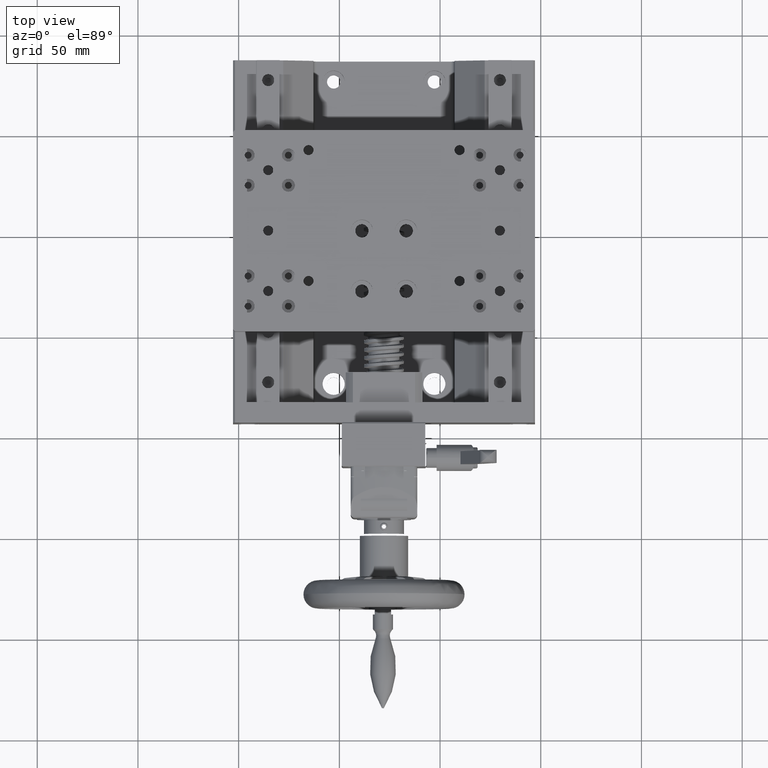
[diagram: clean part render]
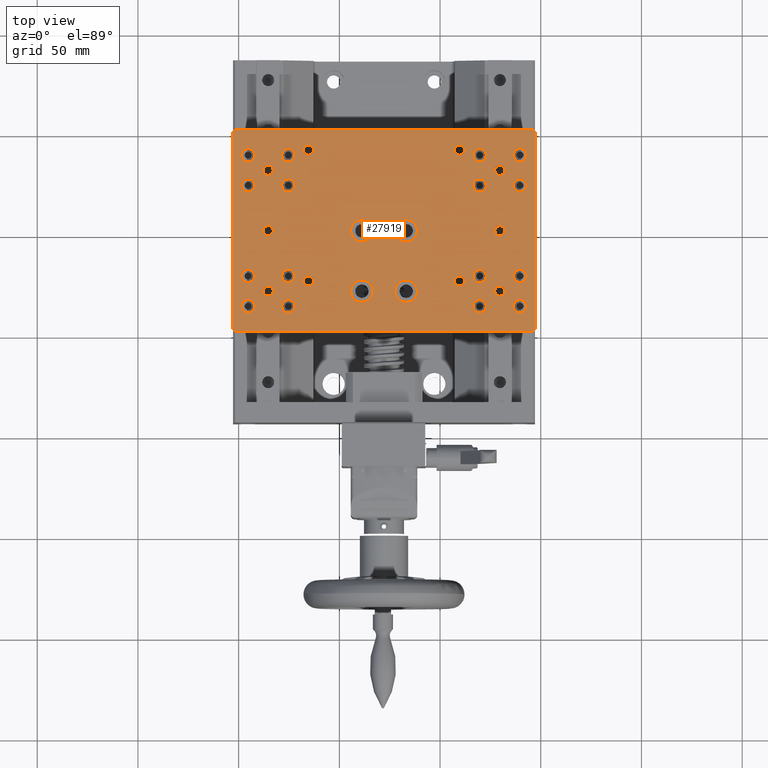
[diagram: same view with one face highlighted and labeled with its STEP entity id]
A machine part, top view. The second image highlights one B-rep face of the part: STEP entity #27919.
In plain terms, the highlighted planar face has unit normal (0, 0, 1).
Its self-contained STEP definition (entity closure, byte-faithful):
#31 = CARTESIAN_POINT ( 'NONE',  ( 19.67352052020018149, 42.70273540209104368, 44.50000000000030553 ) ) ;
#176 = EDGE_CURVE ( 'NONE', #2438, #26626, #18622, .T. ) ;
#212 = ORIENTED_EDGE ( 'NONE', *, *, #29488, .T. ) ;
#237 = EDGE_CURVE ( 'NONE', #23009, #458, #239, .T. ) ;
#239 = CIRCLE ( 'NONE', #1800, 3.250000000000002665 ) ;
#394 = CARTESIAN_POINT ( 'NONE',  ( 47.17352052019985109, -48.04726459790904869, 44.50000000000022737 ) ) ;
#458 = VERTEX_POINT ( 'NONE', #20490 ) ;
#553 = CARTESIAN_POINT ( 'NONE',  ( 9.673520520200183270, 41.95273540209107921, 44.50000000000034106 ) ) ;
#606 = DIRECTION ( 'NONE',  ( 5.551115123125838711E-15, 1.000000000000000000, 0.000000000000000000 ) ) ;
#684 = EDGE_CURVE ( 'NONE', #28300, #30101, #17594, .T. ) ;
#707 = EDGE_CURVE ( 'NONE', #8504, #20099, #12713, .T. ) ;
#801 = CIRCLE ( 'NONE', #25458, 2.499999999999974243 ) ;
#811 = EDGE_CURVE ( 'NONE', #12577, #15685, #16602, .T. ) ;
#895 = CARTESIAN_POINT ( 'NONE',  ( 19.67352052020012110, 24.45273540209104368, 44.50000000000031264 ) ) ;
#918 = CIRCLE ( 'NONE', #28790, 3.250000000000002665 ) ;
#949 = VECTOR ( 'NONE', #14901, 1000.000000000000114 ) ;
#986 = CARTESIAN_POINT ( 'NONE',  ( 29.67352052020012820, 29.45273540209103658, 44.50000000000027001 ) ) ;
#1008 = CARTESIAN_POINT ( 'NONE',  ( -27.82647947979995351, 1.952735402091210659, 44.50000000000047606 ) ) ;
#1017 = VERTEX_POINT ( 'NONE', #11542 ) ;
#1020 = CARTESIAN_POINT ( 'NONE',  ( 19.67352052019991504, -35.54726459790895632, 44.50000000000031974 ) ) ;
#1032 = CIRCLE ( 'NONE', #20483, 5.499999999999987566 ) ;
#1076 = DIRECTION ( 'NONE',  ( 4.163336342344379625E-15, 1.000000000000000000, 0.000000000000000000 ) ) ;
#1128 = CARTESIAN_POINT ( 'NONE',  ( -65.32647947979981495, 41.95273540209134211, 44.50000000000059686 ) ) ;
#1179 = ORIENTED_EDGE ( 'NONE', *, *, #30497, .F. ) ;
#1244 = ORIENTED_EDGE ( 'NONE', *, *, #29768, .F. ) ;
#1249 = VECTOR ( 'NONE', #5901, 1000.000000000000114 ) ;
#1299 = AXIS2_PLACEMENT_3D ( 'NONE', #12927, #20814, #3367 ) ;
#1350 = AXIS2_PLACEMENT_3D ( 'NONE', #29715, #27281, #2214 ) ;
#1488 = AXIS2_PLACEMENT_3D ( 'NONE', #16356, #31157, #3684 ) ;
#1489 = FACE_BOUND ( 'NONE', #16228, .T. ) ;
#1514 = DIRECTION ( 'NONE',  ( -4.270088556250598741E-15, -1.000000000000000000, 0.000000000000000000 ) ) ;
#1590 = ORIENTED_EDGE ( 'NONE', *, *, #24673, .F. ) ;
#1626 = VERTEX_POINT ( 'NONE', #20523 ) ;
#1642 = FACE_BOUND ( 'NONE', #17357, .T. ) ;
#1658 = CARTESIAN_POINT ( 'NONE',  ( -102.8264794797998007, 50.95273539737952717, 44.50000000000072475 ) ) ;
#1786 = AXIS2_PLACEMENT_3D ( 'NONE', #17749, #7399, #2762 ) ;
#1794 = CARTESIAN_POINT ( 'NONE',  ( -95.32647947980007075, -23.79726459790855841, 44.50000000000071054 ) ) ;
#1800 = AXIS2_PLACEMENT_3D ( 'NONE', #9304, #29569, #16909 ) ;
#1833 = AXIS2_PLACEMENT_3D ( 'NONE', #1128, #6082, #13636 ) ;
#1921 = EDGE_LOOP ( 'NONE', ( #27585, #10217 ) ) ;
#1922 = DIRECTION ( 'NONE',  ( -3.452590796308460919E-15, -1.665334536937734318E-16, -1.000000000000000000 ) ) ;
#2002 = CARTESIAN_POINT ( 'NONE',  ( 19.67352052020012465, 27.70273540209104723, 44.50000000000031264 ) ) ;
#2121 = VERTEX_POINT ( 'NONE', #26660 ) ;
#2214 = DIRECTION ( 'NONE',  ( -4.270088556250598741E-15, -1.000000000000000000, 0.000000000000000000 ) ) ;
#2244 = CARTESIAN_POINT ( 'NONE',  ( -85.32647947980005654, -28.04726459790859039, 44.50000000000066791 ) ) ;
#2252 = AXIS2_PLACEMENT_3D ( 'NONE', #6932, #18945, #6625 ) ;
#2303 = CIRCLE ( 'NONE', #20698, 3.250000000000002665 ) ;
#2324 = VERTEX_POINT ( 'NONE', #9498 ) ;
#2329 = CARTESIAN_POINT ( 'NONE',  ( 19.67352052020017794, 39.45273540209104368, 44.50000000000030553 ) ) ;
#2358 = ORIENTED_EDGE ( 'NONE', *, *, #3321, .T. ) ;
#2438 = VERTEX_POINT ( 'NONE', #13113 ) ;
#2513 = DIRECTION ( 'NONE',  ( -3.202566417187948859E-15, -1.000000000000000000, 0.000000000000000000 ) ) ;
#2569 = AXIS2_PLACEMENT_3D ( 'NONE', #1020, #21260, #5973 ) ;
#2762 = DIRECTION ( 'NONE',  ( 5.551115123125840289E-15, 1.000000000000000000, 0.000000000000000000 ) ) ;
#2878 = DIRECTION ( 'NONE',  ( -4.270088556250598741E-15, -1.000000000000000000, 0.000000000000000000 ) ) ;
#2970 = DIRECTION ( 'NONE',  ( -3.452590796308460919E-15, -1.665334536937734318E-16, -1.000000000000000000 ) ) ;
#3001 = DIRECTION ( 'NONE',  ( -3.452590796308460919E-15, -1.665334536937734318E-16, -1.000000000000000000 ) ) ;
#3145 = EDGE_CURVE ( 'NONE', #18561, #13395, #29830, .T. ) ;
#3190 = VERTEX_POINT ( 'NONE', #12704 ) ;
#3275 = CIRCLE ( 'NONE', #29032, 3.250000000000002665 ) ;
#3298 = EDGE_LOOP ( 'NONE', ( #29283, #31075 ) ) ;
#3321 = EDGE_CURVE ( 'NONE', #28840, #8112, #16313, .T. ) ;
#3327 = DIRECTION ( 'NONE',  ( 4.163336342344379625E-15, 1.000000000000000000, 0.000000000000000000 ) ) ;
#3367 = DIRECTION ( 'NONE',  ( -4.270088556250598741E-15, -1.000000000000000000, 0.000000000000000000 ) ) ;
#3403 = AXIS2_PLACEMENT_3D ( 'NONE', #5800, #5641, #10540 ) ;
#3473 = FACE_BOUND ( 'NONE', #3298, .T. ) ;
#3503 = ORIENTED_EDGE ( 'NONE', *, *, #17950, .T. ) ;
#3600 = CIRCLE ( 'NONE', #1488, 5.499999999999987566 ) ;
#3633 = FACE_BOUND ( 'NONE', #22484, .T. ) ;
#3681 = EDGE_CURVE ( 'NONE', #5665, #24808, #14085, .T. ) ;
#3684 = DIRECTION ( 'NONE',  ( -3.784851220313041836E-15, -1.000000000000000000, 0.000000000000000000 ) ) ;
#3685 = CIRCLE ( 'NONE', #19981, 3.250000000000002665 ) ;
#3723 = CARTESIAN_POINT ( 'NONE',  ( 19.67352052019996833, -20.54726459790895277, 44.50000000000031974 ) ) ;
#3785 = EDGE_CURVE ( 'NONE', #24439, #12347, #14247, .T. ) ;
#3796 = DIRECTION ( 'NONE',  ( -4.270088556250598741E-15, -1.000000000000000000, 0.000000000000000000 ) ) ;
#3801 = DIRECTION ( 'NONE',  ( -3.452590796308460919E-15, -1.665334536937734318E-16, -1.000000000000000000 ) ) ;
#3887 = DIRECTION ( 'NONE',  ( 3.452590796308460919E-15, 1.665334536937734318E-16, 1.000000000000000000 ) ) ;
#3894 = ORIENTED_EDGE ( 'NONE', *, *, #19004, .T. ) ;
#3926 = CARTESIAN_POINT ( 'NONE',  ( -65.32647947979980074, 44.45273540209132079, 44.50000000000059686 ) ) ;
#3938 = AXIS2_PLACEMENT_3D ( 'NONE', #2329, #19793, #14851 ) ;
#3957 = EDGE_CURVE ( 'NONE', #28511, #31693, #3600, .T. ) ;
#3975 = FACE_BOUND ( 'NONE', #8365, .T. ) ;
#4000 = ORIENTED_EDGE ( 'NONE', *, *, #12335, .T. ) ;
#4078 = ORIENTED_EDGE ( 'NONE', *, *, #26300, .F. ) ;
#4168 = CARTESIAN_POINT ( 'NONE',  ( -75.32647947980008496, -35.54726459790862236, 44.50000000000065370 ) ) ;
#4170 = ORIENTED_EDGE ( 'NONE', *, *, #30634, .T. ) ;
#4196 = CIRCLE ( 'NONE', #4218, 2.499999999999974687 ) ;
#4218 = AXIS2_PLACEMENT_3D ( 'NONE', #10625, #32542, #25621 ) ;
#4227 = CIRCLE ( 'NONE', #23140, 3.250000000000002665 ) ;
#4270 = EDGE_CURVE ( 'NONE', #14915, #6494, #22547, .T. ) ;
#4299 = DIRECTION ( 'NONE',  ( -3.452590796308460919E-15, -1.665334536937734318E-16, -1.000000000000000000 ) ) ;
#4343 = EDGE_CURVE ( 'NONE', #13612, #11249, #25710, .T. ) ;
#4349 = EDGE_CURVE ( 'NONE', #14831, #26447, #7311, .T. ) ;
#4375 = CARTESIAN_POINT ( 'NONE',  ( -16.82647947980006009, -28.04726459790882842, 44.50000000000044054 ) ) ;
#4396 = CIRCLE ( 'NONE', #26448, 3.250000000000002665 ) ;
#4411 = EDGE_CURVE ( 'NONE', #10368, #6114, #25200, .T. ) ;
#4488 = VERTEX_POINT ( 'NONE', #21918 ) ;
#4493 = DIRECTION ( 'NONE',  ( 5.551115123125840289E-15, 1.000000000000000000, 0.000000000000000000 ) ) ;
#4533 = AXIS2_PLACEMENT_3D ( 'NONE', #29909, #12453, #30219 ) ;
#4550 = VECTOR ( 'NONE', #10434, 1000.000000000000000 ) ;
#4589 = ORIENTED_EDGE ( 'NONE', *, *, #13256, .T. ) ;
#4740 = AXIS2_PLACEMENT_3D ( 'NONE', #4168, #24238, #24394 ) ;
#4760 = DIRECTION ( 'NONE',  ( -4.270088556250598741E-15, -1.000000000000000000, 0.000000000000000000 ) ) ;
#4761 = AXIS2_PLACEMENT_3D ( 'NONE', #18958, #10891, #1514 ) ;
#4763 = DIRECTION ( 'NONE',  ( 4.163336342344379625E-15, 1.000000000000000000, 0.000000000000000000 ) ) ;
#4785 = DIRECTION ( 'NONE',  ( -4.270088556250598741E-15, -1.000000000000000000, 0.000000000000000000 ) ) ;
#4843 = DIRECTION ( 'NONE',  ( -4.270088556250598741E-15, -1.000000000000000000, 0.000000000000000000 ) ) ;
#4969 = DIRECTION ( 'NONE',  ( 3.452590796308460919E-15, 1.665334536937734318E-16, 1.000000000000000000 ) ) ;
#5028 = CIRCLE ( 'NONE', #1833, 2.499999999999974243 ) ;
#5059 = DIRECTION ( 'NONE',  ( -4.270088556250598741E-15, -1.000000000000000000, 0.000000000000000000 ) ) ;
#5157 = AXIS2_PLACEMENT_3D ( 'NONE', #18649, #6503, #28728 ) ;
#5244 = ORIENTED_EDGE ( 'NONE', *, *, #3145, .T. ) ;
#5250 = CARTESIAN_POINT ( 'NONE',  ( -16.82647947980005299, -22.54726459790884263, 44.50000000000044054 ) ) ;
#5251 = AXIS2_PLACEMENT_3D ( 'NONE', #21424, #23902, #8747 ) ;
#5386 = CARTESIAN_POINT ( 'NONE',  ( 19.67352052019991859, -32.29726459790894921, 44.50000000000031974 ) ) ;
#5466 = ORIENTED_EDGE ( 'NONE', *, *, #11305, .F. ) ;
#5480 = ORIENTED_EDGE ( 'NONE', *, *, #21423, .F. ) ;
#5641 = DIRECTION ( 'NONE',  ( -3.452590796308460919E-15, -1.665334536937734318E-16, -1.000000000000000000 ) ) ;
#5665 = VERTEX_POINT ( 'NONE', #24456 ) ;
#5800 = CARTESIAN_POINT ( 'NONE',  ( 9.673520520199954120, -23.04726459790892079, 44.50000000000034817 ) ) ;
#5901 = DIRECTION ( 'NONE',  ( -0.7071067811865451302, 0.7071067811865500152, 2.301000202913787996E-15 ) ) ;
#5973 = DIRECTION ( 'NONE',  ( -3.202566417187948859E-15, -1.000000000000000000, 0.000000000000000000 ) ) ;
#5987 = DIRECTION ( 'NONE',  ( 3.452590796308460919E-15, 1.665334536937734318E-16, 1.000000000000000000 ) ) ;
#6032 = EDGE_CURVE ( 'NONE', #24552, #9585, #14564, .T. ) ;
#6082 = DIRECTION ( 'NONE',  ( -3.452590796308460919E-15, -1.665334536937734318E-16, -1.000000000000000000 ) ) ;
#6114 = VERTEX_POINT ( 'NONE', #13655 ) ;
#6123 = FACE_BOUND ( 'NONE', #20477, .T. ) ;
#6188 = EDGE_LOOP ( 'NONE', ( #24569, #26665 ) ) ;
#6276 = ORIENTED_EDGE ( 'NONE', *, *, #26217, .F. ) ;
#6295 = FACE_BOUND ( 'NONE', #18134, .T. ) ;
#6322 = AXIS2_PLACEMENT_3D ( 'NONE', #25477, #12963, #30400 ) ;
#6355 = EDGE_LOOP ( 'NONE', ( #6411, #6276 ) ) ;
#6411 = ORIENTED_EDGE ( 'NONE', *, *, #23279, .F. ) ;
#6453 = CARTESIAN_POINT ( 'NONE',  ( -65.32647947980004233, -23.04726459790866144, 44.50000000000060396 ) ) ;
#6457 = FACE_BOUND ( 'NONE', #28649, .T. ) ;
#6494 = VERTEX_POINT ( 'NONE', #26932 ) ;
#6503 = DIRECTION ( 'NONE',  ( 3.452590796308460919E-15, 1.665334536937734318E-16, 1.000000000000000000 ) ) ;
#6521 = CARTESIAN_POINT ( 'NONE',  ( -95.32647947979985759, 36.20273540209144159, 44.50000000000069633 ) ) ;
#6538 = DIRECTION ( 'NONE',  ( -3.202566417187948859E-15, -1.000000000000000000, 0.000000000000000000 ) ) ;
#6620 = FACE_BOUND ( 'NONE', #6188, .T. ) ;
#6625 = DIRECTION ( 'NONE',  ( -4.270088556250598741E-15, -1.000000000000000000, 0.000000000000000000 ) ) ;
#6743 = ORIENTED_EDGE ( 'NONE', *, *, #11839, .F. ) ;
#6749 = ORIENTED_EDGE ( 'NONE', *, *, #20824, .F. ) ;
#6773 = DIRECTION ( 'NONE',  ( 5.551115123125840289E-15, 1.000000000000000000, 0.000000000000000000 ) ) ;
#6841 = DIRECTION ( 'NONE',  ( -4.270088556250598741E-15, -1.000000000000000000, 0.000000000000000000 ) ) ;
#6932 = CARTESIAN_POINT ( 'NONE',  ( 39.67352052020016373, 39.45273540209097263, 44.50000000000024158 ) ) ;
#7034 = EDGE_CURVE ( 'NONE', #24808, #5665, #10295, .T. ) ;
#7051 = CIRCLE ( 'NONE', #1786, 2.499999999999974243 ) ;
#7092 = CIRCLE ( 'NONE', #3938, 3.250000000000002665 ) ;
#7127 = CARTESIAN_POINT ( 'NONE',  ( 19.67352052019991504, -35.54726459790895632, 44.50000000000031974 ) ) ;
#7178 = AXIS2_PLACEMENT_3D ( 'NONE', #18679, #23641, #1076 ) ;
#7186 = CARTESIAN_POINT ( 'NONE',  ( -89.82647947744376893, 63.95273539973545240, 44.50000000000067502 ) ) ;
#7230 = CARTESIAN_POINT ( 'NONE',  ( -75.32647947979988601, 24.45273540209137408, 44.50000000000063949 ) ) ;
#7278 = DIRECTION ( 'NONE',  ( -3.452590796308460919E-15, -1.665334536937734318E-16, -1.000000000000000000 ) ) ;
#7311 = CIRCLE ( 'NONE', #5251, 5.499999999999987566 ) ;
#7329 = DIRECTION ( 'NONE',  ( 3.452590796308460919E-15, 1.665334536937734318E-16, 1.000000000000000000 ) ) ;
#7373 = DIRECTION ( 'NONE',  ( 4.163336342344379625E-15, 1.000000000000000000, 0.000000000000000000 ) ) ;
#7394 = VERTEX_POINT ( 'NONE', #24010 ) ;
#7399 = DIRECTION ( 'NONE',  ( -3.452590796308460919E-15, -1.665334536937734318E-16, -1.000000000000000000 ) ) ;
#7411 = ORIENTED_EDGE ( 'NONE', *, *, #21082, .T. ) ;
#7458 = DIRECTION ( 'NONE',  ( 1.000000000000000000, -3.478907848654647380E-15, -3.420639147677696500E-15 ) ) ;
#7499 = EDGE_CURVE ( 'NONE', #15685, #12577, #31194, .T. ) ;
#7533 = EDGE_CURVE ( 'NONE', #13395, #18561, #11736, .T. ) ;
#7594 = VECTOR ( 'NONE', #27013, 1000.000000000000000 ) ;
#7636 = VECTOR ( 'NONE', #32307, 1000.000000000000114 ) ;
#7723 = CARTESIAN_POINT ( 'NONE',  ( 47.17352052019986530, -47.04726459319709164, 44.50000000000022737 ) ) ;
#7769 = CIRCLE ( 'NONE', #24583, 3.250000000000002665 ) ;
#7859 = AXIS2_PLACEMENT_3D ( 'NONE', #20761, #8263, #18293 ) ;
#7952 = CARTESIAN_POINT ( 'NONE',  ( -101.8264794750881919, -48.04726459790853710, 44.50000000000073896 ) ) ;
#7954 = DIRECTION ( 'NONE',  ( 4.163336342344379625E-15, 1.000000000000000000, 0.000000000000000000 ) ) ;
#7966 = CARTESIAN_POINT ( 'NONE',  ( 29.67352052020015307, 31.95273540209100815, 44.50000000000027001 ) ) ;
#8085 = CARTESIAN_POINT ( 'NONE',  ( 19.67352052019996833, -20.54726459790895277, 44.50000000000031974 ) ) ;
#8098 = LINE ( 'NONE', #17475, #9724 ) ;
#8112 = VERTEX_POINT ( 'NONE', #7723 ) ;
#8138 = CARTESIAN_POINT ( 'NONE',  ( 19.67352052019995767, -23.79726459790895632, 44.50000000000031974 ) ) ;
#8194 = ORIENTED_EDGE ( 'NONE', *, *, #10438, .F. ) ;
#8263 = DIRECTION ( 'NONE',  ( -3.452590796308460919E-15, -1.665334536937734318E-16, -1.000000000000000000 ) ) ;
#8343 = ORIENTED_EDGE ( 'NONE', *, *, #16291, .F. ) ;
#8355 = LINE ( 'NONE', #23331, #1249 ) ;
#8365 = EDGE_LOOP ( 'NONE', ( #22284, #25078 ) ) ;
#8376 = DIRECTION ( 'NONE',  ( -4.270088556250598741E-15, -1.000000000000000000, 0.000000000000000000 ) ) ;
#8486 = ORIENTED_EDGE ( 'NONE', *, *, #4343, .F. ) ;
#8504 = VERTEX_POINT ( 'NONE', #13158 ) ;
#8628 = EDGE_LOOP ( 'NONE', ( #6743, #10453 ) ) ;
#8747 = DIRECTION ( 'NONE',  ( -3.784851220313041836E-15, -1.000000000000000000, 0.000000000000000000 ) ) ;
#8799 = CIRCLE ( 'NONE', #5157, 3.250000000000002665 ) ;
#8889 = CARTESIAN_POINT ( 'NONE',  ( -75.32647947980008496, -32.29726459790861526, 44.50000000000065370 ) ) ;
#8925 = ORIENTED_EDGE ( 'NONE', *, *, #18683, .F. ) ;
#8956 = CARTESIAN_POINT ( 'NONE',  ( -85.32647947979982916, 34.45273540209138474, 44.50000000000066080 ) ) ;
#8966 = EDGE_LOOP ( 'NONE', ( #10803, #3503 ) ) ;
#9004 = DIRECTION ( 'NONE',  ( 5.551115123125840289E-15, 1.000000000000000000, 0.000000000000000000 ) ) ;
#9048 = FACE_BOUND ( 'NONE', #13603, .T. ) ;
#9103 = VERTEX_POINT ( 'NONE', #12110 ) ;
#9147 = CARTESIAN_POINT ( 'NONE',  ( -75.32647947980002812, -20.54726459790862592, 44.50000000000064659 ) ) ;
#9178 = AXIS2_PLACEMENT_3D ( 'NONE', #7127, #19621, #29658 ) ;
#9210 = FACE_BOUND ( 'NONE', #16154, .T. ) ;
#9227 = CIRCLE ( 'NONE', #26102, 2.499999999999974243 ) ;
#9304 = CARTESIAN_POINT ( 'NONE',  ( -75.32647947979982916, 39.45273540209137764, 44.50000000000063949 ) ) ;
#9480 = CARTESIAN_POINT ( 'NONE',  ( 39.67352052019992215, -32.29726459790902027, 44.50000000000025580 ) ) ;
#9498 = CARTESIAN_POINT ( 'NONE',  ( -95.32647947980008496, -32.29726459790855131, 44.50000000000071054 ) ) ;
#9585 = VERTEX_POINT ( 'NONE', #18418 ) ;
#9700 = CIRCLE ( 'NONE', #1299, 3.250000000000002665 ) ;
#9724 = VECTOR ( 'NONE', #7458, 1000.000000000000000 ) ;
#9737 = AXIS2_PLACEMENT_3D ( 'NONE', #22476, #7329, #10261 ) ;
#9804 = EDGE_CURVE ( 'NONE', #21197, #11679, #18899, .T. ) ;
#9832 = ORIENTED_EDGE ( 'NONE', *, *, #28963, .T. ) ;
#9851 = CARTESIAN_POINT ( 'NONE',  ( -102.8264794797997865, 51.95273540209147711, 44.50000000000072475 ) ) ;
#9914 = DIRECTION ( 'NONE',  ( -3.452590796308460919E-15, -1.665334536937734318E-16, -1.000000000000000000 ) ) ;
#9920 = EDGE_CURVE ( 'NONE', #28590, #26614, #9963, .T. ) ;
#9963 = CIRCLE ( 'NONE', #4740, 3.250000000000002665 ) ;
#9974 = ORIENTED_EDGE ( 'NONE', *, *, #4270, .T. ) ;
#10012 = CARTESIAN_POINT ( 'NONE',  ( -38.82647947979995706, 1.952735402091241967, 44.50000000000051159 ) ) ;
#10020 = CIRCLE ( 'NONE', #14221, 3.250000000000002665 ) ;
#10083 = CARTESIAN_POINT ( 'NONE',  ( 39.67352052020012820, 27.70273540209097618, 44.50000000000024158 ) ) ;
#10217 = ORIENTED_EDGE ( 'NONE', *, *, #23029, .F. ) ;
#10261 = DIRECTION ( 'NONE',  ( -4.270088556250598741E-15, -1.000000000000000000, 0.000000000000000000 ) ) ;
#10295 = CIRCLE ( 'NONE', #23449, 3.250000000000002665 ) ;
#10368 = VERTEX_POINT ( 'NONE', #8956 ) ;
#10423 = CARTESIAN_POINT ( 'NONE',  ( 39.67352052020017084, 42.70273540209097973, 44.50000000000024158 ) ) ;
#10434 = DIRECTION ( 'NONE',  ( 3.486929317224867175E-15, 1.000000000000000000, -1.665334536937734811E-16 ) ) ;
#10438 = EDGE_CURVE ( 'NONE', #7394, #9103, #3685, .T. ) ;
#10453 = ORIENTED_EDGE ( 'NONE', *, *, #12641, .F. ) ;
#10473 = EDGE_CURVE ( 'NONE', #2324, #17786, #4227, .T. ) ;
#10512 = CARTESIAN_POINT ( 'NONE',  ( -95.32647947979984338, 39.45273540209144869, 44.50000000000069633 ) ) ;
#10540 = DIRECTION ( 'NONE',  ( 3.469446951953650082E-15, 1.000000000000000000, 0.000000000000000000 ) ) ;
#10590 = DIRECTION ( 'NONE',  ( 3.469446951953650082E-15, 1.000000000000000000, 0.000000000000000000 ) ) ;
#10625 = CARTESIAN_POINT ( 'NONE',  ( -85.32647947979995706, 1.952735402091410721, 44.50000000000066080 ) ) ;
#10796 = AXIS2_PLACEMENT_3D ( 'NONE', #11631, #26649, #4760 ) ;
#10803 = ORIENTED_EDGE ( 'NONE', *, *, #15529, .T. ) ;
#10891 = DIRECTION ( 'NONE',  ( 3.452590796308460919E-15, 1.665334536937734318E-16, 1.000000000000000000 ) ) ;
#10969 = DIRECTION ( 'NONE',  ( -3.452590796308460919E-15, -1.665334536937734318E-16, -1.000000000000000000 ) ) ;
#10978 = CARTESIAN_POINT ( 'NONE',  ( -38.82647947979994996, 7.452735402091229311, 44.50000000000051159 ) ) ;
#11041 = FACE_BOUND ( 'NONE', #14762, .T. ) ;
#11116 = ORIENTED_EDGE ( 'NONE', *, *, #32556, .F. ) ;
#11194 = FACE_BOUND ( 'NONE', #23861, .T. ) ;
#11249 = VERTEX_POINT ( 'NONE', #5386 ) ;
#11275 = AXIS2_PLACEMENT_3D ( 'NONE', #27722, #12698, #4843 ) ;
#11305 = EDGE_CURVE ( 'NONE', #30101, #28300, #14159, .T. ) ;
#11386 = VERTEX_POINT ( 'NONE', #26422 ) ;
#11438 = AXIS2_PLACEMENT_3D ( 'NONE', #21928, #7278, #4493 ) ;
#11469 = DIRECTION ( 'NONE',  ( 3.452590796308460919E-15, 1.665334536937734318E-16, 1.000000000000000000 ) ) ;
#11542 = CARTESIAN_POINT ( 'NONE',  ( 9.673520520199927475, -25.54726459790889592, 44.50000000000034817 ) ) ;
#11631 = CARTESIAN_POINT ( 'NONE',  ( 39.67352052019991504, -35.54726459790902027, 44.50000000000025580 ) ) ;
#11664 = CIRCLE ( 'NONE', #30070, 2.499999999999974243 ) ;
#11677 = PLANE ( 'NONE',  #32522 ) ;
#11679 = VERTEX_POINT ( 'NONE', #10083 ) ;
#11706 = AXIS2_PLACEMENT_3D ( 'NONE', #12142, #32060, #29115 ) ;
#11730 = EDGE_CURVE ( 'NONE', #27986, #23127, #14184, .T. ) ;
#11736 = CIRCLE ( 'NONE', #19183, 2.499999999999974243 ) ;
#11839 = EDGE_CURVE ( 'NONE', #2121, #21381, #1032, .T. ) ;
#11842 = EDGE_CURVE ( 'NONE', #26447, #14831, #19980, .T. ) ;
#11912 = DIRECTION ( 'NONE',  ( -4.270088556250598741E-15, -1.000000000000000000, 0.000000000000000000 ) ) ;
#11913 = DIRECTION ( 'NONE',  ( -4.270088556250598741E-15, -1.000000000000000000, 0.000000000000000000 ) ) ;
#11992 = ORIENTED_EDGE ( 'NONE', *, *, #21649, .T. ) ;
#11998 = VERTEX_POINT ( 'NONE', #21017 ) ;
#12110 = CARTESIAN_POINT ( 'NONE',  ( -75.32647947979990022, 21.20273540209137053, 44.50000000000063949 ) ) ;
#12125 = DIRECTION ( 'NONE',  ( -3.452590796308460919E-15, -1.665334536937734318E-16, -1.000000000000000000 ) ) ;
#12142 = CARTESIAN_POINT ( 'NONE',  ( -38.82647947980005654, -28.04726459790875026, 44.50000000000051870 ) ) ;
#12217 = CIRCLE ( 'NONE', #16958, 2.499999999999974243 ) ;
#12250 = VERTEX_POINT ( 'NONE', #18956 ) ;
#12335 = EDGE_CURVE ( 'NONE', #24110, #16615, #25643, .T. ) ;
#12347 = VERTEX_POINT ( 'NONE', #1658 ) ;
#12396 = CIRCLE ( 'NONE', #4533, 5.499999999999984013 ) ;
#12425 = CIRCLE ( 'NONE', #12940, 3.250000000000002665 ) ;
#12427 = DIRECTION ( 'NONE',  ( -4.270088556250598741E-15, -1.000000000000000000, 0.000000000000000000 ) ) ;
#12453 = DIRECTION ( 'NONE',  ( 3.452590796308460919E-15, 1.665334536937734318E-16, 1.000000000000000000 ) ) ;
#12488 = DIRECTION ( 'NONE',  ( -3.486929317224867175E-15, -1.000000000000000000, 1.665334536937734811E-16 ) ) ;
#12529 = AXIS2_PLACEMENT_3D ( 'NONE', #32473, #9914, #19975 ) ;
#12569 = DIRECTION ( 'NONE',  ( 3.452590796308460919E-15, 1.665334536937734318E-16, 1.000000000000000000 ) ) ;
#12577 = VERTEX_POINT ( 'NONE', #986 ) ;
#12641 = EDGE_CURVE ( 'NONE', #21381, #2121, #13551, .T. ) ;
#12650 = LINE ( 'NONE', #9851, #24931 ) ;
#12698 = DIRECTION ( 'NONE',  ( 3.452590796308460919E-15, 1.665334536937734318E-16, 1.000000000000000000 ) ) ;
#12702 = CARTESIAN_POINT ( 'NONE',  ( 9.673520520199963002, -20.54726459790894566, 44.50000000000034817 ) ) ;
#12704 = CARTESIAN_POINT ( 'NONE',  ( 29.67352052019995412, -25.54726459790901316, 44.50000000000028422 ) ) ;
#12713 = LINE ( 'NONE', #29523, #7636 ) ;
#12726 = CIRCLE ( 'NONE', #31118, 3.250000000000002665 ) ;
#12803 = VERTEX_POINT ( 'NONE', #9480 ) ;
#12927 = CARTESIAN_POINT ( 'NONE',  ( -75.32647947980002812, -20.54726459790862592, 44.50000000000064659 ) ) ;
#12940 = AXIS2_PLACEMENT_3D ( 'NONE', #26935, #27269, #11912 ) ;
#12963 = DIRECTION ( 'NONE',  ( 3.452590796308460919E-15, 1.665334536937734318E-16, 1.000000000000000000 ) ) ;
#12977 = ORIENTED_EDGE ( 'NONE', *, *, #14019, .F. ) ;
#13093 = CARTESIAN_POINT ( 'NONE',  ( 39.67352052019995767, -20.54726459790902382, 44.50000000000024869 ) ) ;
#13095 = EDGE_LOOP ( 'NONE', ( #22063, #20633 ) ) ;
#13113 = CARTESIAN_POINT ( 'NONE',  ( -85.32647947979994285, 4.452735402091385630, 44.50000000000066080 ) ) ;
#13140 = CARTESIAN_POINT ( 'NONE',  ( 29.67352052020005715, 4.452735402090985062, 44.50000000000027711 ) ) ;
#13158 = CARTESIAN_POINT ( 'NONE',  ( -102.8264794798001276, -47.04726459319657295, 44.50000000000073896 ) ) ;
#13256 = EDGE_CURVE ( 'NONE', #4488, #24439, #16951, .T. ) ;
#13283 = ORIENTED_EDGE ( 'NONE', *, *, #4411, .T. ) ;
#13395 = VERTEX_POINT ( 'NONE', #13140 ) ;
#13511 = FACE_BOUND ( 'NONE', #15908, .T. ) ;
#13517 = CARTESIAN_POINT ( 'NONE',  ( 34.17352051784386191, -60.04726459555303109, 44.50000000000027711 ) ) ;
#13551 = CIRCLE ( 'NONE', #31936, 5.499999999999987566 ) ;
#13561 = ORIENTED_EDGE ( 'NONE', *, *, #11842, .F. ) ;
#13603 = EDGE_LOOP ( 'NONE', ( #8486, #1244 ) ) ;
#13612 = VERTEX_POINT ( 'NONE', #26977 ) ;
#13636 = DIRECTION ( 'NONE',  ( 5.551115123125840289E-15, 1.000000000000000000, 0.000000000000000000 ) ) ;
#13640 = EDGE_CURVE ( 'NONE', #12803, #16938, #27661, .T. ) ;
#13655 = CARTESIAN_POINT ( 'NONE',  ( -85.32647947979988601, 29.45273540209143803, 44.50000000000066080 ) ) ;
#13670 = FACE_OUTER_BOUND ( 'NONE', #22670, .T. ) ;
#13754 = EDGE_CURVE ( 'NONE', #15993, #11998, #12396, .T. ) ;
#13808 = DIRECTION ( 'NONE',  ( -4.270088556250598741E-15, -1.000000000000000000, 0.000000000000000000 ) ) ;
#13948 = CIRCLE ( 'NONE', #9737, 3.250000000000002665 ) ;
#14019 = EDGE_CURVE ( 'NONE', #30267, #23375, #12425, .T. ) ;
#14030 = EDGE_CURVE ( 'NONE', #11998, #15993, #30299, .T. ) ;
#14065 = CARTESIAN_POINT ( 'NONE',  ( -75.32647947979981495, 42.70273540209137764, 44.50000000000063949 ) ) ;
#14085 = CIRCLE ( 'NONE', #18280, 3.250000000000002665 ) ;
#14159 = CIRCLE ( 'NONE', #19410, 3.250000000000002665 ) ;
#14184 = CIRCLE ( 'NONE', #4761, 3.250000000000002665 ) ;
#14221 = AXIS2_PLACEMENT_3D ( 'NONE', #29534, #29217, #6841 ) ;
#14247 = LINE ( 'NONE', #7186, #949 ) ;
#14294 = CARTESIAN_POINT ( 'NONE',  ( 39.67352052020012110, 24.45273540209097618, 44.50000000000024158 ) ) ;
#14359 = AXIS2_PLACEMENT_3D ( 'NONE', #7966, #3001, #3327 ) ;
#14538 = CARTESIAN_POINT ( 'NONE',  ( -16.82647947979994640, 7.452735402091163586, 44.50000000000044054 ) ) ;
#14564 = CIRCLE ( 'NONE', #30721, 2.499999999999974243 ) ;
#14565 = DIRECTION ( 'NONE',  ( 3.452590796308460919E-15, 1.665334536937734318E-16, 1.000000000000000000 ) ) ;
#14664 = DIRECTION ( 'NONE',  ( -4.270088556250598741E-15, -1.000000000000000000, 0.000000000000000000 ) ) ;
#14721 = DIRECTION ( 'NONE',  ( -4.270088556250598741E-15, -1.000000000000000000, 0.000000000000000000 ) ) ;
#14744 = DIRECTION ( 'NONE',  ( -3.452590796308460919E-15, -1.665334536937734318E-16, -1.000000000000000000 ) ) ;
#14762 = EDGE_LOOP ( 'NONE', ( #6749, #12977 ) ) ;
#14801 = CARTESIAN_POINT ( 'NONE',  ( 39.67352052020010689, 21.20273540209097263, 44.50000000000024158 ) ) ;
#14802 = EDGE_CURVE ( 'NONE', #20368, #17301, #22359, .T. ) ;
#14828 = EDGE_CURVE ( 'NONE', #6494, #14915, #5028, .T. ) ;
#14831 = VERTEX_POINT ( 'NONE', #21370 ) ;
#14851 = DIRECTION ( 'NONE',  ( -3.202566417187948859E-15, -1.000000000000000000, 0.000000000000000000 ) ) ;
#14901 = DIRECTION ( 'NONE',  ( -0.7071067811865500152, -0.7071067811865451302, 2.536514071716354973E-15 ) ) ;
#14915 = VERTEX_POINT ( 'NONE', #3926 ) ;
#14933 = DIRECTION ( 'NONE',  ( 3.452590796308460919E-15, 1.665334536937734318E-16, 1.000000000000000000 ) ) ;
#14963 = CARTESIAN_POINT ( 'NONE',  ( 39.67352052019990083, -38.79726459790902737, 44.50000000000025580 ) ) ;
#14987 = EDGE_CURVE ( 'NONE', #26912, #22601, #9700, .T. ) ;
#15046 = EDGE_LOOP ( 'NONE', ( #8343, #29929 ) ) ;
#15069 = AXIS2_PLACEMENT_3D ( 'NONE', #4375, #26774, #21983 ) ;
#15165 = DIRECTION ( 'NONE',  ( 3.469446951953650082E-15, 1.000000000000000000, 0.000000000000000000 ) ) ;
#15193 = DIRECTION ( 'NONE',  ( -3.452590796308460919E-15, -1.665334536937734318E-16, -1.000000000000000000 ) ) ;
#15196 = CARTESIAN_POINT ( 'NONE',  ( -75.32647947980009917, -38.79726459790862236, 44.50000000000065370 ) ) ;
#15395 = DIRECTION ( 'NONE',  ( 3.452590796308460919E-15, 1.665334536937734318E-16, 1.000000000000000000 ) ) ;
#15488 = AXIS2_PLACEMENT_3D ( 'NONE', #10512, #15930, #8376 ) ;
#15529 = EDGE_CURVE ( 'NONE', #29572, #11386, #7051, .T. ) ;
#15685 = VERTEX_POINT ( 'NONE', #28305 ) ;
#15694 = EDGE_LOOP ( 'NONE', ( #29295, #13561 ) ) ;
#15749 = CARTESIAN_POINT ( 'NONE',  ( -85.32647947979995706, 1.952735402091410721, 44.50000000000066080 ) ) ;
#15792 = VERTEX_POINT ( 'NONE', #21033 ) ;
#15799 = CARTESIAN_POINT ( 'NONE',  ( 9.673520520200183270, 41.95273540209107921, 44.50000000000034106 ) ) ;
#15828 = ORIENTED_EDGE ( 'NONE', *, *, #24965, .T. ) ;
#15908 = EDGE_LOOP ( 'NONE', ( #13283, #3894 ) ) ;
#15930 = DIRECTION ( 'NONE',  ( 3.452590796308460919E-15, 1.665334536937734318E-16, 1.000000000000000000 ) ) ;
#15993 = VERTEX_POINT ( 'NONE', #5250 ) ;
#16140 = FACE_BOUND ( 'NONE', #28577, .T. ) ;
#16154 = EDGE_LOOP ( 'NONE', ( #21515, #9832 ) ) ;
#16228 = EDGE_LOOP ( 'NONE', ( #23661, #5244 ) ) ;
#16291 = EDGE_CURVE ( 'NONE', #458, #23009, #13948, .T. ) ;
#16294 = CIRCLE ( 'NONE', #20495, 2.499999999999974243 ) ;
#16304 = CARTESIAN_POINT ( 'NONE',  ( -95.32647947979984338, 39.45273540209144869, 44.50000000000069633 ) ) ;
#16313 = LINE ( 'NONE', #13517, #25127 ) ;
#16342 = CARTESIAN_POINT ( 'NONE',  ( -95.32647947979990022, 21.20273540209144159, 44.50000000000070344 ) ) ;
#16356 = CARTESIAN_POINT ( 'NONE',  ( -38.82647947980005654, -28.04726459790875026, 44.50000000000051870 ) ) ;
#16471 = FACE_BOUND ( 'NONE', #21057, .T. ) ;
#16533 = ORIENTED_EDGE ( 'NONE', *, *, #13640, .F. ) ;
#16550 = CARTESIAN_POINT ( 'NONE',  ( 47.17352052020019926, 50.95273539737900137, 44.50000000000021316 ) ) ;
#16602 = CIRCLE ( 'NONE', #14359, 2.499999999999974243 ) ;
#16615 = VERTEX_POINT ( 'NONE', #24889 ) ;
#16807 = FACE_BOUND ( 'NONE', #13095, .T. ) ;
#16909 = DIRECTION ( 'NONE',  ( -4.270088556250598741E-15, -1.000000000000000000, 0.000000000000000000 ) ) ;
#16938 = VERTEX_POINT ( 'NONE', #14963 ) ;
#16951 = LINE ( 'NONE', #17113, #7594 ) ;
#16958 = AXIS2_PLACEMENT_3D ( 'NONE', #24624, #14744, #29878 ) ;
#17113 = CARTESIAN_POINT ( 'NONE',  ( 47.17352052020021347, 51.95273540209095842, 44.50000000000021316 ) ) ;
#17210 = EDGE_CURVE ( 'NONE', #3190, #15792, #21353, .T. ) ;
#17301 = VERTEX_POINT ( 'NONE', #6521 ) ;
#17357 = EDGE_LOOP ( 'NONE', ( #8925, #8194 ) ) ;
#17475 = CARTESIAN_POINT ( 'NONE',  ( -102.8264794798001418, -48.04726459790852999, 44.50000000000073896 ) ) ;
#17594 = CIRCLE ( 'NONE', #26582, 3.250000000000002665 ) ;
#17749 = CARTESIAN_POINT ( 'NONE',  ( -65.32647947980004233, -23.04726459790866144, 44.50000000000060396 ) ) ;
#17786 = VERTEX_POINT ( 'NONE', #30142 ) ;
#17854 = EDGE_LOOP ( 'NONE', ( #4078, #21214 ) ) ;
#17950 = EDGE_CURVE ( 'NONE', #11386, #29572, #11664, .T. ) ;
#17999 = EDGE_CURVE ( 'NONE', #17301, #20368, #12726, .T. ) ;
#18107 = DIRECTION ( 'NONE',  ( -3.202566417187948859E-15, -1.000000000000000000, 0.000000000000000000 ) ) ;
#18134 = EDGE_LOOP ( 'NONE', ( #18421, #4000 ) ) ;
#18280 = AXIS2_PLACEMENT_3D ( 'NONE', #3723, #3887, #6538 ) ;
#18293 = DIRECTION ( 'NONE',  ( 5.551115123125840289E-15, 1.000000000000000000, 0.000000000000000000 ) ) ;
#18345 = ORIENTED_EDGE ( 'NONE', *, *, #3957, .F. ) ;
#18418 = CARTESIAN_POINT ( 'NONE',  ( 9.673520520200156625, 39.45273540209110763, 44.50000000000034106 ) ) ;
#18421 = ORIENTED_EDGE ( 'NONE', *, *, #28915, .T. ) ;
#18561 = VERTEX_POINT ( 'NONE', #23953 ) ;
#18595 = FACE_BOUND ( 'NONE', #30889, .T. ) ;
#18603 = DIRECTION ( 'NONE',  ( 0.7071067811865500152, 0.7071067811865451302, -2.536514071716354973E-15 ) ) ;
#18622 = CIRCLE ( 'NONE', #32303, 2.499999999999974687 ) ;
#18649 = CARTESIAN_POINT ( 'NONE',  ( 19.67352052020017794, 39.45273540209104368, 44.50000000000030553 ) ) ;
#18679 = CARTESIAN_POINT ( 'NONE',  ( 29.67352052019994346, -28.04726459790898829, 44.50000000000028422 ) ) ;
#18681 = EDGE_CURVE ( 'NONE', #31693, #28511, #22245, .T. ) ;
#18683 = EDGE_CURVE ( 'NONE', #9103, #7394, #4396, .T. ) ;
#18899 = CIRCLE ( 'NONE', #32039, 3.250000000000002665 ) ;
#18942 = FACE_BOUND ( 'NONE', #20049, .T. ) ;
#18945 = DIRECTION ( 'NONE',  ( 3.452590796308460919E-15, 1.665334536937734318E-16, 1.000000000000000000 ) ) ;
#18956 = CARTESIAN_POINT ( 'NONE',  ( -95.32647947980005654, -17.29726459790855131, 44.50000000000071054 ) ) ;
#18958 = CARTESIAN_POINT ( 'NONE',  ( 39.67352052020016373, 39.45273540209097263, 44.50000000000024158 ) ) ;
#19004 = EDGE_CURVE ( 'NONE', #6114, #10368, #801, .T. ) ;
#19097 = FACE_BOUND ( 'NONE', #28469, .T. ) ;
#19132 = AXIS2_PLACEMENT_3D ( 'NONE', #13093, #15395, #2878 ) ;
#19164 = CARTESIAN_POINT ( 'NONE',  ( -38.82647947980007785, -33.54726459790873605, 44.50000000000051870 ) ) ;
#19183 = AXIS2_PLACEMENT_3D ( 'NONE', #29915, #32195, #7373 ) ;
#19410 = AXIS2_PLACEMENT_3D ( 'NONE', #895, #28899, #29042 ) ;
#19490 = CARTESIAN_POINT ( 'NONE',  ( -75.32647947979988601, 24.45273540209137408, 44.50000000000063949 ) ) ;
#19621 = DIRECTION ( 'NONE',  ( 3.452590796308460919E-15, 1.665334536937734318E-16, 1.000000000000000000 ) ) ;
#19659 = ORIENTED_EDGE ( 'NONE', *, *, #14828, .T. ) ;
#19668 = DIRECTION ( 'NONE',  ( 3.452590796308460919E-15, 1.665334536937734318E-16, 1.000000000000000000 ) ) ;
#19683 = EDGE_CURVE ( 'NONE', #28223, #1626, #7092, .T. ) ;
#19701 = EDGE_CURVE ( 'NONE', #11679, #21197, #22354, .T. ) ;
#19793 = DIRECTION ( 'NONE',  ( 3.452590796308460919E-15, 1.665334536937734318E-16, 1.000000000000000000 ) ) ;
#19975 = DIRECTION ( 'NONE',  ( 5.551115123125840289E-15, 1.000000000000000000, 0.000000000000000000 ) ) ;
#19980 = CIRCLE ( 'NONE', #6322, 5.499999999999987566 ) ;
#19981 = AXIS2_PLACEMENT_3D ( 'NONE', #19490, #12569, #14721 ) ;
#20009 = CARTESIAN_POINT ( 'NONE',  ( -75.32647947980008496, -35.54726459790862236, 44.50000000000065370 ) ) ;
#20049 = EDGE_LOOP ( 'NONE', ( #20579, #18345 ) ) ;
#20098 = VERTEX_POINT ( 'NONE', #12702 ) ;
#20099 = VERTEX_POINT ( 'NONE', #7952 ) ;
#20101 = EDGE_CURVE ( 'NONE', #20099, #28840, #8098, .T. ) ;
#20192 = CARTESIAN_POINT ( 'NONE',  ( -95.32647947979988601, 24.45273540209144159, 44.50000000000070344 ) ) ;
#20360 = DIRECTION ( 'NONE',  ( -3.784851220313041836E-15, -1.000000000000000000, 0.000000000000000000 ) ) ;
#20368 = VERTEX_POINT ( 'NONE', #26997 ) ;
#20471 = DIRECTION ( 'NONE',  ( -3.452590796308460919E-15, -1.665334536937734318E-16, -1.000000000000000000 ) ) ;
#20477 = EDGE_LOOP ( 'NONE', ( #11116, #27290 ) ) ;
#20483 = AXIS2_PLACEMENT_3D ( 'NONE', #21107, #31130, #20360 ) ;
#20490 = CARTESIAN_POINT ( 'NONE',  ( -75.32647947979984338, 36.20273540209137053, 44.50000000000063949 ) ) ;
#20495 = AXIS2_PLACEMENT_3D ( 'NONE', #553, #20471, #10590 ) ;
#20523 = CARTESIAN_POINT ( 'NONE',  ( 19.67352052020016728, 36.20273540209104368, 44.50000000000030553 ) ) ;
#20579 = ORIENTED_EDGE ( 'NONE', *, *, #18681, .F. ) ;
#20611 = CARTESIAN_POINT ( 'NONE',  ( -95.32647947979988601, 24.45273540209144159, 44.50000000000070344 ) ) ;
#20633 = ORIENTED_EDGE ( 'NONE', *, *, #14802, .F. ) ;
#20698 = AXIS2_PLACEMENT_3D ( 'NONE', #9147, #11469, #26139 ) ;
#20761 = CARTESIAN_POINT ( 'NONE',  ( -85.32647947979984338, 31.95273540209141316, 44.50000000000066080 ) ) ;
#20814 = DIRECTION ( 'NONE',  ( 3.452590796308460919E-15, 1.665334536937734318E-16, 1.000000000000000000 ) ) ;
#20824 = EDGE_CURVE ( 'NONE', #23375, #30267, #30671, .T. ) ;
#20845 = ORIENTED_EDGE ( 'NONE', *, *, #19701, .F. ) ;
#20915 = CARTESIAN_POINT ( 'NONE',  ( -38.82647947980004233, -22.54726459790876092, 44.50000000000051870 ) ) ;
#21017 = CARTESIAN_POINT ( 'NONE',  ( -16.82647947980008141, -33.54726459790881421, 44.50000000000044054 ) ) ;
#21033 = CARTESIAN_POINT ( 'NONE',  ( 29.67352052019991859, -30.54726459790896342, 44.50000000000028422 ) ) ;
#21057 = EDGE_LOOP ( 'NONE', ( #31700, #23109 ) ) ;
#21082 = EDGE_CURVE ( 'NONE', #12347, #8504, #12650, .T. ) ;
#21086 = DIRECTION ( 'NONE',  ( 3.452590796308460919E-15, 1.665334536937614509E-16, 1.000000000000000000 ) ) ;
#21087 = CIRCLE ( 'NONE', #24245, 3.250000000000002665 ) ;
#21107 = CARTESIAN_POINT ( 'NONE',  ( -38.82647947979995706, 1.952735402091241967, 44.50000000000051159 ) ) ;
#21197 = VERTEX_POINT ( 'NONE', #14801 ) ;
#21203 = AXIS2_PLACEMENT_3D ( 'NONE', #28008, #4969, #14664 ) ;
#21214 = ORIENTED_EDGE ( 'NONE', *, *, #19683, .F. ) ;
#21225 = AXIS2_PLACEMENT_3D ( 'NONE', #21866, #12125, #4763 ) ;
#21247 = FACE_BOUND ( 'NONE', #15694, .T. ) ;
#21260 = DIRECTION ( 'NONE',  ( 3.452590796308460919E-15, 1.665334536937734318E-16, 1.000000000000000000 ) ) ;
#21353 = CIRCLE ( 'NONE', #7178, 2.499999999999974243 ) ;
#21358 = ORIENTED_EDGE ( 'NONE', *, *, #21382, .T. ) ;
#21370 = CARTESIAN_POINT ( 'NONE',  ( -16.82647947979997483, -3.547264597908811545, 44.50000000000044054 ) ) ;
#21381 = VERTEX_POINT ( 'NONE', #10978 ) ;
#21382 = EDGE_CURVE ( 'NONE', #29327, #4488, #8355, .T. ) ;
#21406 = FACE_BOUND ( 'NONE', #17854, .T. ) ;
#21423 = EDGE_CURVE ( 'NONE', #22601, #26912, #2303, .T. ) ;
#21424 = CARTESIAN_POINT ( 'NONE',  ( -16.82647947979995351, 1.952735402091175798, 44.50000000000044054 ) ) ;
#21515 = ORIENTED_EDGE ( 'NONE', *, *, #176, .T. ) ;
#21649 = EDGE_CURVE ( 'NONE', #1017, #20098, #26580, .T. ) ;
#21734 = FACE_BOUND ( 'NONE', #30560, .T. ) ;
#21797 = ORIENTED_EDGE ( 'NONE', *, *, #9920, .F. ) ;
#21866 = CARTESIAN_POINT ( 'NONE',  ( 29.67352052020015307, 31.95273540209100815, 44.50000000000027001 ) ) ;
#21918 = CARTESIAN_POINT ( 'NONE',  ( 46.17352051548825642, 51.95273540209095842, 44.50000000000021316 ) ) ;
#21928 = CARTESIAN_POINT ( 'NONE',  ( -85.32647947980005654, -28.04726459790859039, 44.50000000000066791 ) ) ;
#21983 = DIRECTION ( 'NONE',  ( -3.784851220313044991E-15, -1.000000000000000000, 0.000000000000000000 ) ) ;
#22028 = DIRECTION ( 'NONE',  ( 5.551115123125840289E-15, 1.000000000000000000, 0.000000000000000000 ) ) ;
#22063 = ORIENTED_EDGE ( 'NONE', *, *, #17999, .F. ) ;
#22163 = ORIENTED_EDGE ( 'NONE', *, *, #14987, .F. ) ;
#22245 = CIRCLE ( 'NONE', #11706, 5.499999999999987566 ) ;
#22284 = ORIENTED_EDGE ( 'NONE', *, *, #7499, .T. ) ;
#22354 = CIRCLE ( 'NONE', #11275, 3.250000000000002665 ) ;
#22359 = CIRCLE ( 'NONE', #15488, 3.250000000000002665 ) ;
#22476 = CARTESIAN_POINT ( 'NONE',  ( -75.32647947979982916, 39.45273540209137764, 44.50000000000063949 ) ) ;
#22484 = EDGE_LOOP ( 'NONE', ( #5466, #30660 ) ) ;
#22547 = CIRCLE ( 'NONE', #12529, 2.499999999999974243 ) ;
#22601 = VERTEX_POINT ( 'NONE', #27987 ) ;
#22670 = EDGE_LOOP ( 'NONE', ( #7411, #26548, #24922, #2358, #4170, #21358, #4589, #32350 ) ) ;
#22997 = CARTESIAN_POINT ( 'NONE',  ( 39.67352052019996478, -17.29726459790902027, 44.50000000000024869 ) ) ;
#23009 = VERTEX_POINT ( 'NONE', #14065 ) ;
#23029 = EDGE_CURVE ( 'NONE', #12250, #28661, #10020, .T. ) ;
#23109 = ORIENTED_EDGE ( 'NONE', *, *, #31080, .T. ) ;
#23127 = VERTEX_POINT ( 'NONE', #10423 ) ;
#23140 = AXIS2_PLACEMENT_3D ( 'NONE', #32497, #14565, #11913 ) ;
#23273 = CARTESIAN_POINT ( 'NONE',  ( -65.32647947980002812, -20.54726459790868631, 44.50000000000060396 ) ) ;
#23279 = EDGE_CURVE ( 'NONE', #29509, #32136, #21087, .T. ) ;
#23312 = CARTESIAN_POINT ( 'NONE',  ( -101.8264794750878224, 51.95273540209147001, 44.50000000000071765 ) ) ;
#23331 = CARTESIAN_POINT ( 'NONE',  ( 34.17352051784429534, 63.95273539973501897, 44.50000000000025580 ) ) ;
#23375 = VERTEX_POINT ( 'NONE', #29173 ) ;
#23449 = AXIS2_PLACEMENT_3D ( 'NONE', #8085, #30939, #18107 ) ;
#23569 = FACE_BOUND ( 'NONE', #8966, .T. ) ;
#23634 = ORIENTED_EDGE ( 'NONE', *, *, #9804, .F. ) ;
#23641 = DIRECTION ( 'NONE',  ( -3.452590796308460919E-15, -1.665334536937734318E-16, -1.000000000000000000 ) ) ;
#23661 = ORIENTED_EDGE ( 'NONE', *, *, #7533, .T. ) ;
#23692 = DIRECTION ( 'NONE',  ( -3.452590796308460919E-15, -1.665334536937734318E-16, -1.000000000000000000 ) ) ;
#23735 = DIRECTION ( 'NONE',  ( -3.486929317224867175E-15, -1.000000000000000000, 1.665334536937734811E-16 ) ) ;
#23861 = EDGE_LOOP ( 'NONE', ( #23634, #20845 ) ) ;
#23902 = DIRECTION ( 'NONE',  ( 3.452590796308460919E-15, 1.665334536937734318E-16, 1.000000000000000000 ) ) ;
#23953 = CARTESIAN_POINT ( 'NONE',  ( 29.67352052020002517, -0.5472645979089638679, 44.50000000000027711 ) ) ;
#24010 = CARTESIAN_POINT ( 'NONE',  ( -75.32647947979987180, 27.70273540209137764, 44.50000000000063949 ) ) ;
#24110 = VERTEX_POINT ( 'NONE', #28165 ) ;
#24214 = FACE_BOUND ( 'NONE', #1921, .T. ) ;
#24238 = DIRECTION ( 'NONE',  ( 3.452590796308460919E-15, 1.665334536937734318E-16, 1.000000000000000000 ) ) ;
#24245 = AXIS2_PLACEMENT_3D ( 'NONE', #20611, #5987, #26068 ) ;
#24328 = CARTESIAN_POINT ( 'NONE',  ( 46.17352051548790115, -48.04726459790904869, 44.50000000000023448 ) ) ;
#24394 = DIRECTION ( 'NONE',  ( -4.270088556250598741E-15, -1.000000000000000000, 0.000000000000000000 ) ) ;
#24439 = VERTEX_POINT ( 'NONE', #23312 ) ;
#24456 = CARTESIAN_POINT ( 'NONE',  ( 19.67352052019997188, -17.29726459790895277, 44.50000000000031974 ) ) ;
#24552 = VERTEX_POINT ( 'NONE', #26951 ) ;
#24569 = ORIENTED_EDGE ( 'NONE', *, *, #14030, .F. ) ;
#24583 = AXIS2_PLACEMENT_3D ( 'NONE', #20192, #14933, #29926 ) ;
#24624 = CARTESIAN_POINT ( 'NONE',  ( 9.673520520199954120, -23.04726459790892079, 44.50000000000034817 ) ) ;
#24673 = EDGE_CURVE ( 'NONE', #26614, #28590, #3275, .T. ) ;
#24808 = VERTEX_POINT ( 'NONE', #8138 ) ;
#24889 = CARTESIAN_POINT ( 'NONE',  ( -85.32647947980004233, -25.54726459790861526, 44.50000000000066791 ) ) ;
#24911 = CARTESIAN_POINT ( 'NONE',  ( -85.32647947979998548, -0.5472645979085638546, 44.50000000000066080 ) ) ;
#24922 = ORIENTED_EDGE ( 'NONE', *, *, #20101, .T. ) ;
#24931 = VECTOR ( 'NONE', #12488, 1000.000000000000000 ) ;
#24965 = EDGE_CURVE ( 'NONE', #20098, #1017, #12217, .T. ) ;
#24977 = CIRCLE ( 'NONE', #9178, 3.250000000000002665 ) ;
#25078 = ORIENTED_EDGE ( 'NONE', *, *, #811, .T. ) ;
#25088 = CARTESIAN_POINT ( 'NONE',  ( 19.67352052020012110, 24.45273540209104368, 44.50000000000031264 ) ) ;
#25127 = VECTOR ( 'NONE', #18603, 1000.000000000000114 ) ;
#25200 = CIRCLE ( 'NONE', #7859, 2.499999999999974243 ) ;
#25335 = DIRECTION ( 'NONE',  ( -3.784851220313041836E-15, -1.000000000000000000, 0.000000000000000000 ) ) ;
#25421 = LINE ( 'NONE', #394, #4550 ) ;
#25458 = AXIS2_PLACEMENT_3D ( 'NONE', #26478, #23692, #9004 ) ;
#25477 = CARTESIAN_POINT ( 'NONE',  ( -16.82647947979995351, 1.952735402091175798, 44.50000000000044054 ) ) ;
#25621 = DIRECTION ( 'NONE',  ( 5.551115123125838711E-15, 1.000000000000000000, 0.000000000000000000 ) ) ;
#25643 = CIRCLE ( 'NONE', #11438, 2.499999999999974243 ) ;
#25675 = EDGE_CURVE ( 'NONE', #23127, #27986, #27530, .T. ) ;
#25710 = CIRCLE ( 'NONE', #2569, 3.250000000000002665 ) ;
#25723 = DIRECTION ( 'NONE',  ( 4.163336342344379625E-15, 1.000000000000000000, 0.000000000000000000 ) ) ;
#25801 = EDGE_CURVE ( 'NONE', #28661, #12250, #30645, .T. ) ;
#26068 = DIRECTION ( 'NONE',  ( -4.270088556250598741E-15, -1.000000000000000000, 0.000000000000000000 ) ) ;
#26102 = AXIS2_PLACEMENT_3D ( 'NONE', #28206, #3801, #25723 ) ;
#26139 = DIRECTION ( 'NONE',  ( -4.270088556250598741E-15, -1.000000000000000000, 0.000000000000000000 ) ) ;
#26201 = FACE_BOUND ( 'NONE', #31680, .T. ) ;
#26217 = EDGE_CURVE ( 'NONE', #32136, #29509, #7769, .T. ) ;
#26300 = EDGE_CURVE ( 'NONE', #1626, #28223, #8799, .T. ) ;
#26359 = DIRECTION ( 'NONE',  ( 3.452590796308460919E-15, 1.665334536937734318E-16, 1.000000000000000000 ) ) ;
#26422 = CARTESIAN_POINT ( 'NONE',  ( -65.32647947980008496, -25.54726459790863657, 44.50000000000060396 ) ) ;
#26447 = VERTEX_POINT ( 'NONE', #14538 ) ;
#26448 = AXIS2_PLACEMENT_3D ( 'NONE', #7230, #31721, #4785 ) ;
#26478 = CARTESIAN_POINT ( 'NONE',  ( -85.32647947979984338, 31.95273540209141316, 44.50000000000066080 ) ) ;
#26525 = FACE_BOUND ( 'NONE', #6355, .T. ) ;
#26548 = ORIENTED_EDGE ( 'NONE', *, *, #707, .T. ) ;
#26580 = CIRCLE ( 'NONE', #3403, 2.499999999999974243 ) ;
#26582 = AXIS2_PLACEMENT_3D ( 'NONE', #25088, #30008, #2513 ) ;
#26614 = VERTEX_POINT ( 'NONE', #15196 ) ;
#26626 = VERTEX_POINT ( 'NONE', #24911 ) ;
#26649 = DIRECTION ( 'NONE',  ( 3.452590796308460919E-15, 1.665334536937734318E-16, 1.000000000000000000 ) ) ;
#26660 = CARTESIAN_POINT ( 'NONE',  ( -38.82647947979997127, -3.547264597908745376, 44.50000000000051159 ) ) ;
#26665 = ORIENTED_EDGE ( 'NONE', *, *, #13754, .F. ) ;
#26774 = DIRECTION ( 'NONE',  ( 3.452590796308460919E-15, 1.665334536937734318E-16, 1.000000000000000000 ) ) ;
#26812 = CIRCLE ( 'NONE', #30454, 2.499999999999974243 ) ;
#26912 = VERTEX_POINT ( 'NONE', #30284 ) ;
#26932 = CARTESIAN_POINT ( 'NONE',  ( -65.32647947979984338, 39.45273540209137053, 44.50000000000059686 ) ) ;
#26935 = CARTESIAN_POINT ( 'NONE',  ( 39.67352052019995767, -20.54726459790902382, 44.50000000000024869 ) ) ;
#26951 = CARTESIAN_POINT ( 'NONE',  ( 9.673520520200192152, 44.45273540209105789, 44.50000000000034106 ) ) ;
#26977 = CARTESIAN_POINT ( 'NONE',  ( 19.67352052019990438, -38.79726459790895632, 44.50000000000031974 ) ) ;
#26997 = CARTESIAN_POINT ( 'NONE',  ( -95.32647947979982916, 42.70273540209144869, 44.50000000000069633 ) ) ;
#27013 = DIRECTION ( 'NONE',  ( -1.000000000000000000, 3.478907848654647380E-15, 3.420639147677696500E-15 ) ) ;
#27269 = DIRECTION ( 'NONE',  ( 3.452590796308460919E-15, 1.665334536937734318E-16, 1.000000000000000000 ) ) ;
#27281 = DIRECTION ( 'NONE',  ( 3.452590796308460919E-15, 1.665334536937734318E-16, 1.000000000000000000 ) ) ;
#27283 = CARTESIAN_POINT ( 'NONE',  ( -95.32647947980009917, -35.54726459790855131, 44.50000000000071054 ) ) ;
#27290 = ORIENTED_EDGE ( 'NONE', *, *, #10473, .F. ) ;
#27530 = CIRCLE ( 'NONE', #2252, 3.250000000000002665 ) ;
#27585 = ORIENTED_EDGE ( 'NONE', *, *, #25801, .F. ) ;
#27661 = CIRCLE ( 'NONE', #10796, 3.250000000000002665 ) ;
#27722 = CARTESIAN_POINT ( 'NONE',  ( 39.67352052020012110, 24.45273540209097618, 44.50000000000024158 ) ) ;
#27768 = DIRECTION ( 'NONE',  ( 3.452590796308460919E-15, 1.665334536937734318E-16, 1.000000000000000000 ) ) ;
#27774 = AXIS2_PLACEMENT_3D ( 'NONE', #30320, #15193, #7954 ) ;
#27824 = DIRECTION ( 'NONE',  ( 3.452590796308460919E-15, 1.665334536937734318E-16, 1.000000000000000000 ) ) ;
#27919 = ADVANCED_FACE ( 'NONE', ( #21247, #6620, #18942, #31751, #9048, #21734, #26201, #11041, #6123, #24214, #18595, #16140, #3633, #21406, #11194, #3473, #26525, #16807, #1642, #31447, #28989, #9210, #1489, #6295, #13511, #23569, #6457, #16471, #3975, #19097, #13670 ), #11677, .T. ) ;
#27986 = VERTEX_POINT ( 'NONE', #30110 ) ;
#27987 = CARTESIAN_POINT ( 'NONE',  ( -75.32647947980002812, -17.29726459790862236, 44.50000000000064659 ) ) ;
#28008 = CARTESIAN_POINT ( 'NONE',  ( -95.32647947980005654, -20.54726459790855486, 44.50000000000071054 ) ) ;
#28165 = CARTESIAN_POINT ( 'NONE',  ( -85.32647947980009917, -30.54726459790856552, 44.50000000000066791 ) ) ;
#28206 = CARTESIAN_POINT ( 'NONE',  ( 29.67352052019994346, -28.04726459790898829, 44.50000000000028422 ) ) ;
#28223 = VERTEX_POINT ( 'NONE', #31 ) ;
#28300 = VERTEX_POINT ( 'NONE', #2002 ) ;
#28305 = CARTESIAN_POINT ( 'NONE',  ( 29.67352052020016373, 34.45273540209098684, 44.50000000000027001 ) ) ;
#28469 = EDGE_LOOP ( 'NONE', ( #30656, #212 ) ) ;
#28511 = VERTEX_POINT ( 'NONE', #20915 ) ;
#28577 = EDGE_LOOP ( 'NONE', ( #22163, #5480 ) ) ;
#28590 = VERTEX_POINT ( 'NONE', #8889 ) ;
#28649 = EDGE_LOOP ( 'NONE', ( #15828, #11992 ) ) ;
#28661 = VERTEX_POINT ( 'NONE', #1794 ) ;
#28728 = DIRECTION ( 'NONE',  ( -3.202566417187948859E-15, -1.000000000000000000, 0.000000000000000000 ) ) ;
#28790 = AXIS2_PLACEMENT_3D ( 'NONE', #27283, #19668, #5059 ) ;
#28840 = VERTEX_POINT ( 'NONE', #24328 ) ;
#28899 = DIRECTION ( 'NONE',  ( 3.452590796308460919E-15, 1.665334536937734318E-16, 1.000000000000000000 ) ) ;
#28915 = EDGE_CURVE ( 'NONE', #16615, #24110, #26812, .T. ) ;
#28963 = EDGE_CURVE ( 'NONE', #26626, #2438, #4196, .T. ) ;
#28989 = FACE_BOUND ( 'NONE', #31953, .T. ) ;
#29032 = AXIS2_PLACEMENT_3D ( 'NONE', #20009, #27768, #12427 ) ;
#29042 = DIRECTION ( 'NONE',  ( -3.202566417187948859E-15, -1.000000000000000000, 0.000000000000000000 ) ) ;
#29115 = DIRECTION ( 'NONE',  ( -3.784851220313041836E-15, -1.000000000000000000, 0.000000000000000000 ) ) ;
#29173 = CARTESIAN_POINT ( 'NONE',  ( 39.67352052019994346, -23.79726459790902737, 44.50000000000024869 ) ) ;
#29203 = CIRCLE ( 'NONE', #1350, 3.250000000000002665 ) ;
#29217 = DIRECTION ( 'NONE',  ( 3.452590796308460919E-15, 1.665334536937734318E-16, 1.000000000000000000 ) ) ;
#29283 = ORIENTED_EDGE ( 'NONE', *, *, #11730, .F. ) ;
#29295 = ORIENTED_EDGE ( 'NONE', *, *, #4349, .F. ) ;
#29327 = VERTEX_POINT ( 'NONE', #16550 ) ;
#29488 = EDGE_CURVE ( 'NONE', #9585, #24552, #16294, .T. ) ;
#29509 = VERTEX_POINT ( 'NONE', #16342 ) ;
#29523 = CARTESIAN_POINT ( 'NONE',  ( -89.82647947744419525, -60.04726459555260476, 44.50000000000069633 ) ) ;
#29534 = CARTESIAN_POINT ( 'NONE',  ( -95.32647947980005654, -20.54726459790855486, 44.50000000000071054 ) ) ;
#29569 = DIRECTION ( 'NONE',  ( 3.452590796308460919E-15, 1.665334536937734318E-16, 1.000000000000000000 ) ) ;
#29572 = VERTEX_POINT ( 'NONE', #23273 ) ;
#29658 = DIRECTION ( 'NONE',  ( -3.202566417187948859E-15, -1.000000000000000000, 0.000000000000000000 ) ) ;
#29715 = CARTESIAN_POINT ( 'NONE',  ( 39.67352052019991504, -35.54726459790902027, 44.50000000000025580 ) ) ;
#29768 = EDGE_CURVE ( 'NONE', #11249, #13612, #24977, .T. ) ;
#29830 = CIRCLE ( 'NONE', #27774, 2.499999999999974243 ) ;
#29878 = DIRECTION ( 'NONE',  ( 3.469446951953650082E-15, 1.000000000000000000, 0.000000000000000000 ) ) ;
#29909 = CARTESIAN_POINT ( 'NONE',  ( -16.82647947980006009, -28.04726459790882842, 44.50000000000044054 ) ) ;
#29915 = CARTESIAN_POINT ( 'NONE',  ( 29.67352052020004649, 1.952735402091010597, 44.50000000000027711 ) ) ;
#29926 = DIRECTION ( 'NONE',  ( -4.270088556250598741E-15, -1.000000000000000000, 0.000000000000000000 ) ) ;
#29929 = ORIENTED_EDGE ( 'NONE', *, *, #237, .F. ) ;
#30008 = DIRECTION ( 'NONE',  ( 3.452590796308460919E-15, 1.665334536937734318E-16, 1.000000000000000000 ) ) ;
#30070 = AXIS2_PLACEMENT_3D ( 'NONE', #6453, #4299, #6773 ) ;
#30101 = VERTEX_POINT ( 'NONE', #31598 ) ;
#30110 = CARTESIAN_POINT ( 'NONE',  ( 39.67352052020014952, 36.20273540209097263, 44.50000000000024158 ) ) ;
#30142 = CARTESIAN_POINT ( 'NONE',  ( -95.32647947980011338, -38.79726459790855131, 44.50000000000071054 ) ) ;
#30214 = ORIENTED_EDGE ( 'NONE', *, *, #7034, .F. ) ;
#30219 = DIRECTION ( 'NONE',  ( -3.784851220313044991E-15, -1.000000000000000000, 0.000000000000000000 ) ) ;
#30267 = VERTEX_POINT ( 'NONE', #22997 ) ;
#30284 = CARTESIAN_POINT ( 'NONE',  ( -75.32647947980004233, -23.79726459790862592, 44.50000000000064659 ) ) ;
#30299 = CIRCLE ( 'NONE', #15069, 5.499999999999984013 ) ;
#30320 = CARTESIAN_POINT ( 'NONE',  ( 29.67352052020004649, 1.952735402091010597, 44.50000000000027711 ) ) ;
#30400 = DIRECTION ( 'NONE',  ( -3.784851220313041836E-15, -1.000000000000000000, 0.000000000000000000 ) ) ;
#30454 = AXIS2_PLACEMENT_3D ( 'NONE', #2244, #1922, #22028 ) ;
#30497 = EDGE_CURVE ( 'NONE', #16938, #12803, #29203, .T. ) ;
#30560 = EDGE_LOOP ( 'NONE', ( #30214, #31345 ) ) ;
#30634 = EDGE_CURVE ( 'NONE', #8112, #29327, #25421, .T. ) ;
#30645 = CIRCLE ( 'NONE', #21203, 3.250000000000002665 ) ;
#30656 = ORIENTED_EDGE ( 'NONE', *, *, #6032, .T. ) ;
#30660 = ORIENTED_EDGE ( 'NONE', *, *, #684, .F. ) ;
#30671 = CIRCLE ( 'NONE', #19132, 3.250000000000002665 ) ;
#30721 = AXIS2_PLACEMENT_3D ( 'NONE', #15799, #2970, #15165 ) ;
#30745 = CARTESIAN_POINT ( 'NONE',  ( -95.32647947979988601, 27.70273540209144514, 44.50000000000070344 ) ) ;
#30889 = EDGE_LOOP ( 'NONE', ( #1590, #21797 ) ) ;
#30939 = DIRECTION ( 'NONE',  ( 3.452590796308460919E-15, 1.665334536937734318E-16, 1.000000000000000000 ) ) ;
#31075 = ORIENTED_EDGE ( 'NONE', *, *, #25675, .F. ) ;
#31080 = EDGE_CURVE ( 'NONE', #15792, #3190, #9227, .T. ) ;
#31118 = AXIS2_PLACEMENT_3D ( 'NONE', #16304, #26359, #3796 ) ;
#31130 = DIRECTION ( 'NONE',  ( 3.452590796308460919E-15, 1.665334536937734318E-16, 1.000000000000000000 ) ) ;
#31157 = DIRECTION ( 'NONE',  ( 3.452590796308460919E-15, 1.665334536937734318E-16, 1.000000000000000000 ) ) ;
#31194 = CIRCLE ( 'NONE', #21225, 2.499999999999974243 ) ;
#31345 = ORIENTED_EDGE ( 'NONE', *, *, #3681, .F. ) ;
#31447 = FACE_BOUND ( 'NONE', #15046, .T. ) ;
#31598 = CARTESIAN_POINT ( 'NONE',  ( 19.67352052020011044, 21.20273540209104013, 44.50000000000031264 ) ) ;
#31680 = EDGE_LOOP ( 'NONE', ( #1179, #16533 ) ) ;
#31693 = VERTEX_POINT ( 'NONE', #19164 ) ;
#31700 = ORIENTED_EDGE ( 'NONE', *, *, #17210, .T. ) ;
#31721 = DIRECTION ( 'NONE',  ( 3.452590796308460919E-15, 1.665334536937734318E-16, 1.000000000000000000 ) ) ;
#31751 = FACE_BOUND ( 'NONE', #8628, .T. ) ;
#31936 = AXIS2_PLACEMENT_3D ( 'NONE', #10012, #27824, #25335 ) ;
#31953 = EDGE_LOOP ( 'NONE', ( #9974, #19659 ) ) ;
#32039 = AXIS2_PLACEMENT_3D ( 'NONE', #14294, #32069, #13808 ) ;
#32060 = DIRECTION ( 'NONE',  ( 3.452590796308460919E-15, 1.665334536937734318E-16, 1.000000000000000000 ) ) ;
#32069 = DIRECTION ( 'NONE',  ( 3.452590796308460919E-15, 1.665334536937734318E-16, 1.000000000000000000 ) ) ;
#32136 = VERTEX_POINT ( 'NONE', #30745 ) ;
#32195 = DIRECTION ( 'NONE',  ( -3.452590796308460919E-15, -1.665334536937734318E-16, -1.000000000000000000 ) ) ;
#32303 = AXIS2_PLACEMENT_3D ( 'NONE', #15749, #10969, #606 ) ;
#32307 = DIRECTION ( 'NONE',  ( 0.7071067811865451302, -0.7071067811865500152, -2.301000202913787996E-15 ) ) ;
#32350 = ORIENTED_EDGE ( 'NONE', *, *, #3785, .T. ) ;
#32473 = CARTESIAN_POINT ( 'NONE',  ( -65.32647947979981495, 41.95273540209134211, 44.50000000000059686 ) ) ;
#32497 = CARTESIAN_POINT ( 'NONE',  ( -95.32647947980009917, -35.54726459790855131, 44.50000000000071054 ) ) ;
#32522 = AXIS2_PLACEMENT_3D ( 'NONE', #1008, #21086, #23735 ) ;
#32542 = DIRECTION ( 'NONE',  ( -3.452590796308460919E-15, -1.665334536937734318E-16, -1.000000000000000000 ) ) ;
#32556 = EDGE_CURVE ( 'NONE', #17786, #2324, #918, .T. ) ;